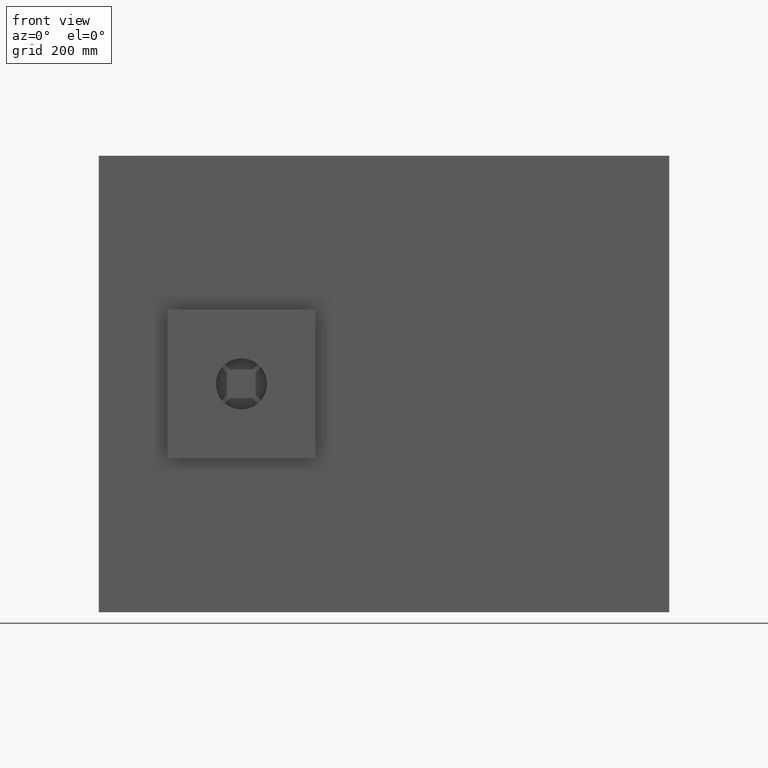
[diagram: clean part render]
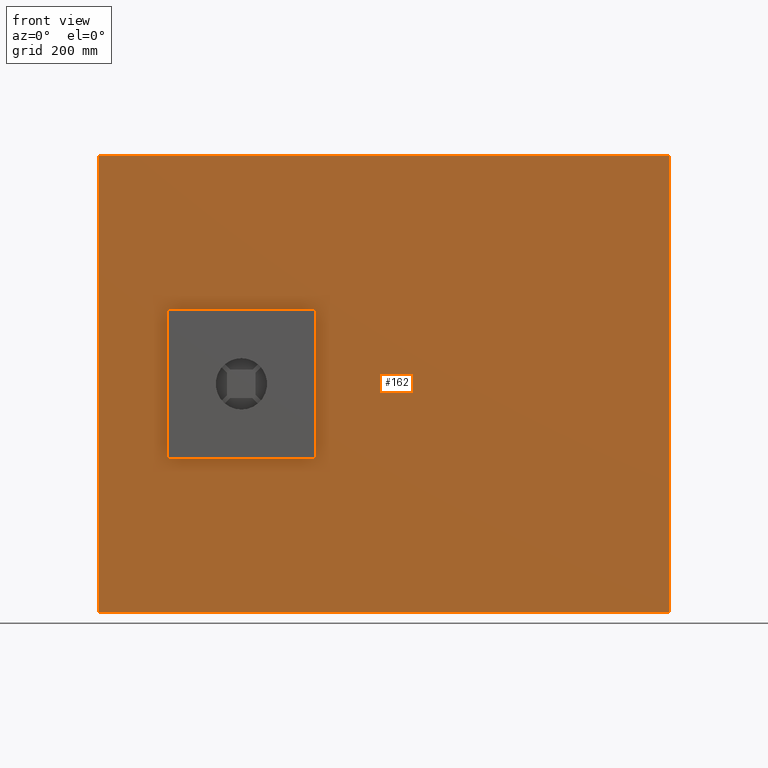
[diagram: same view with one face highlighted and labeled with its STEP entity id]
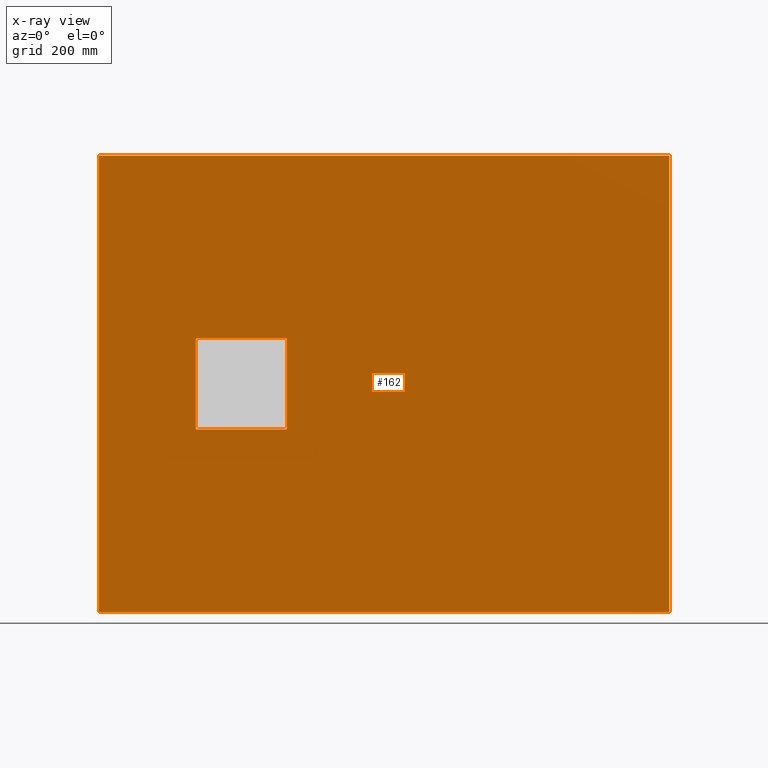
[diagram: x-ray of the same camera — body ghosted, the highlighted face saturated]
A machine part, front view. The second image highlights one B-rep face of the part: STEP entity #162.
The next image is the same camera in x-ray: the body ghosted, the highlighted face saturated — about 0% of this face is hidden behind the body in this view.
In plain terms, the highlighted planar face has unit normal (0, 1, 0).
Its self-contained STEP definition (entity closure, byte-faithful):
#59 = CARTESIAN_POINT ( 'NONE',  ( -170.0000000000001100, 0.0000000000000000000, -77.50000000000018500 ) ) ;
#153 = DIRECTION ( 'NONE',  ( 1.000000000000000000, 0.0000000000000000000, 0.0000000000000000000 ) ) ;
#162 = ADVANCED_FACE ( 'NONE', ( #1513, #1788 ), #604, .F. ) ;
#191 = CARTESIAN_POINT ( 'NONE',  ( -172.5000000000000900, 0.0000000000000000000, 79.99999999999990100 ) ) ;
#230 = VECTOR ( 'NONE', #2792, 1000.000000000000000 ) ;
#236 = LINE ( 'NONE', #2987, #230 ) ;
#245 = ORIENTED_EDGE ( 'NONE', *, *, #2427, .T. ) ;
#253 = VERTEX_POINT ( 'NONE', #2025 ) ;
#279 = CARTESIAN_POINT ( 'NONE',  ( -500.0000000000001100, 0.0000000000000000000, 399.9999999999998900 ) ) ;
#285 = CARTESIAN_POINT ( 'NONE',  ( -172.5000000000000900, 0.0000000000000000000, 77.49999999999994300 ) ) ;
#326 = VERTEX_POINT ( 'NONE', #3090 ) ;
#333 = VERTEX_POINT ( 'NONE', #2588 ) ;
#371 = CARTESIAN_POINT ( 'NONE',  ( -500.0000000000001100, 0.0000000000000000000, 399.9999999999998900 ) ) ;
#441 = CARTESIAN_POINT ( 'NONE',  ( -327.5000000000001700, 0.0000000000000000000, -80.00000000000011400 ) ) ;
#475 = ORIENTED_EDGE ( 'NONE', *, *, #3261, .T. ) ;
#510 = DIRECTION ( 'NONE',  ( -1.790682297782509700E-016, -0.0000000000000000000, -1.000000000000000000 ) ) ;
#512 = ORIENTED_EDGE ( 'NONE', *, *, #3291, .T. ) ;
#513 = DIRECTION ( 'NONE',  ( 0.0000000000000000000, 1.000000000000000000, 0.0000000000000000000 ) ) ;
#537 = VERTEX_POINT ( 'NONE', #2288 ) ;
#545 = ORIENTED_EDGE ( 'NONE', *, *, #1469, .F. ) ;
#590 = VERTEX_POINT ( 'NONE', #2278 ) ;
#595 = ORIENTED_EDGE ( 'NONE', *, *, #3197, .T. ) ;
#604 = PLANE ( 'NONE',  #1599 ) ;
#712 = CARTESIAN_POINT ( 'NONE',  ( -500.0000000000002300, 0.0000000000000000000, -400.0000000000001100 ) ) ;
#735 = VERTEX_POINT ( 'NONE', #191 ) ;
#745 = DIRECTION ( 'NONE',  ( 0.0000000000000000000, 0.0000000000000000000, 1.000000000000000000 ) ) ;
#749 = DIRECTION ( 'NONE',  ( -1.387778780781445700E-016, -0.0000000000000000000, -1.000000000000000000 ) ) ;
#752 = EDGE_CURVE ( 'NONE', #735, #2246, #902, .T. ) ;
#755 = CARTESIAN_POINT ( 'NONE',  ( -327.5000000000001700, 0.0000000000000000000, -77.50000000000011400 ) ) ;
#821 = DIRECTION ( 'NONE',  ( 0.0000000000000000000, 1.000000000000000000, 0.0000000000000000000 ) ) ;
#868 = EDGE_CURVE ( 'NONE', #1247, #590, #2715, .T. ) ;
#873 = DIRECTION ( 'NONE',  ( 0.0000000000000000000, 1.000000000000000000, 0.0000000000000000000 ) ) ;
#902 = CIRCLE ( 'NONE', #1299, 2.499999999999960500 ) ;
#912 = EDGE_CURVE ( 'NONE', #253, #1247, #236, .T. ) ;
#951 = AXIS2_PLACEMENT_3D ( 'NONE', #2915, #873, #2224 ) ;
#1078 = CARTESIAN_POINT ( 'NONE',  ( 499.9999999999997700, 0.0000000000000000000, -400.0000000000001100 ) ) ;
#1094 = CARTESIAN_POINT ( 'NONE',  ( -327.5000000000001100, 0.0000000000000000000, 79.99999999999991500 ) ) ;
#1160 = CARTESIAN_POINT ( 'NONE',  ( -327.5000000000001700, 0.0000000000000000000, -80.00000000000011400 ) ) ;
#1247 = VERTEX_POINT ( 'NONE', #2430 ) ;
#1299 = AXIS2_PLACEMENT_3D ( 'NONE', #285, #513, #745 ) ;
#1341 = VERTEX_POINT ( 'NONE', #279 ) ;
#1376 = EDGE_LOOP ( 'NONE', ( #475, #1454, #595, #512, #2923, #245, #2656, #1962 ) ) ;
#1386 = ORIENTED_EDGE ( 'NONE', *, *, #1535, .F. ) ;
#1394 = EDGE_LOOP ( 'NONE', ( #2973, #545, #1386, #2707 ) ) ;
#1411 = CIRCLE ( 'NONE', #3048, 2.500000000000002200 ) ;
#1454 = ORIENTED_EDGE ( 'NONE', *, *, #752, .T. ) ;
#1469 = EDGE_CURVE ( 'NONE', #333, #537, #2564, .T. ) ;
#1485 = DIRECTION ( 'NONE',  ( -1.000000000000000000, -0.0000000000000000000, -0.0000000000000000000 ) ) ;
#1513 = FACE_BOUND ( 'NONE', #1376, .T. ) ;
#1535 = EDGE_CURVE ( 'NONE', #326, #333, #2633, .T. ) ;
#1599 = AXIS2_PLACEMENT_3D ( 'NONE', #2107, #1768, #1734 ) ;
#1611 = DIRECTION ( 'NONE',  ( 0.0000000000000000000, 0.0000000000000000000, 1.000000000000000000 ) ) ;
#1616 = DIRECTION ( 'NONE',  ( 1.387778780781445700E-016, 0.0000000000000000000, 1.000000000000000000 ) ) ;
#1734 = DIRECTION ( 'NONE',  ( 0.0000000000000000000, -0.0000000000000000000, 1.000000000000000000 ) ) ;
#1768 = DIRECTION ( 'NONE',  ( 0.0000000000000000000, 1.000000000000000000, 0.0000000000000000000 ) ) ;
#1788 = FACE_OUTER_BOUND ( 'NONE', #1394, .T. ) ;
#1811 = LINE ( 'NONE', #712, #1817 ) ;
#1817 = VECTOR ( 'NONE', #1616, 1000.000000000000000 ) ;
#1876 = CARTESIAN_POINT ( 'NONE',  ( -170.0000000000001100, 0.0000000000000000000, 77.49999999999994300 ) ) ;
#1920 = VERTEX_POINT ( 'NONE', #59 ) ;
#1962 = ORIENTED_EDGE ( 'NONE', *, *, #868, .T. ) ;
#1977 = LINE ( 'NONE', #2003, #2817 ) ;
#1991 = EDGE_CURVE ( 'NONE', #537, #1341, #1811, .T. ) ;
#2003 = CARTESIAN_POINT ( 'NONE',  ( -170.0000000000001400, 0.0000000000000000000, -77.50000000000014200 ) ) ;
#2025 = CARTESIAN_POINT ( 'NONE',  ( -330.0000000000001700, 0.0000000000000000000, -77.50000000000011400 ) ) ;
#2033 = AXIS2_PLACEMENT_3D ( 'NONE', #755, #821, #1611 ) ;
#2107 = CARTESIAN_POINT ( 'NONE',  ( -500.0000000000001100, 0.0000000000000000000, 399.9999999999998900 ) ) ;
#2154 = LINE ( 'NONE', #371, #2185 ) ;
#2185 = VECTOR ( 'NONE', #153, 1000.000000000000000 ) ;
#2187 = EDGE_CURVE ( 'NONE', #1341, #326, #2154, .T. ) ;
#2224 = DIRECTION ( 'NONE',  ( 0.0000000000000000000, 0.0000000000000000000, 1.000000000000000000 ) ) ;
#2246 = VERTEX_POINT ( 'NONE', #1876 ) ;
#2257 = VERTEX_POINT ( 'NONE', #3247 ) ;
#2278 = CARTESIAN_POINT ( 'NONE',  ( -327.5000000000001100, 0.0000000000000000000, 79.99999999999991500 ) ) ;
#2288 = CARTESIAN_POINT ( 'NONE',  ( -500.0000000000002300, 0.0000000000000000000, -400.0000000000001100 ) ) ;
#2362 = CIRCLE ( 'NONE', #2033, 2.500000000000002200 ) ;
#2427 = EDGE_CURVE ( 'NONE', #2782, #253, #2362, .T. ) ;
#2430 = CARTESIAN_POINT ( 'NONE',  ( -330.0000000000001700, 0.0000000000000000000, 77.49999999999994300 ) ) ;
#2496 = EDGE_CURVE ( 'NONE', #2257, #2782, #2642, .T. ) ;
#2510 = DIRECTION ( 'NONE',  ( 0.0000000000000000000, 1.000000000000000000, -0.0000000000000000000 ) ) ;
#2525 = CARTESIAN_POINT ( 'NONE',  ( -172.5000000000001400, 0.0000000000000000000, -77.50000000000014200 ) ) ;
#2564 = LINE ( 'NONE', #3256, #2643 ) ;
#2574 = VECTOR ( 'NONE', #749, 1000.000000000000000 ) ;
#2588 = CARTESIAN_POINT ( 'NONE',  ( 499.9999999999997700, 0.0000000000000000000, -400.0000000000001100 ) ) ;
#2593 = VECTOR ( 'NONE', #2803, 1000.000000000000000 ) ;
#2633 = LINE ( 'NONE', #1078, #2574 ) ;
#2642 = LINE ( 'NONE', #441, #2593 ) ;
#2643 = VECTOR ( 'NONE', #1485, 1000.000000000000000 ) ;
#2656 = ORIENTED_EDGE ( 'NONE', *, *, #912, .T. ) ;
#2707 = ORIENTED_EDGE ( 'NONE', *, *, #2187, .F. ) ;
#2715 = CIRCLE ( 'NONE', #951, 2.500000000000044000 ) ;
#2779 = DIRECTION ( 'NONE',  ( 0.0000000000000000000, 0.0000000000000000000, -1.000000000000000000 ) ) ;
#2782 = VERTEX_POINT ( 'NONE', #1160 ) ;
#2792 = DIRECTION ( 'NONE',  ( -3.581364595565019900E-016, 0.0000000000000000000, 1.000000000000000000 ) ) ;
#2803 = DIRECTION ( 'NONE',  ( -1.000000000000000000, -0.0000000000000000000, 1.790682297782510200E-016 ) ) ;
#2817 = VECTOR ( 'NONE', #510, 1000.000000000000000 ) ;
#2915 = CARTESIAN_POINT ( 'NONE',  ( -327.5000000000001100, 0.0000000000000000000, 77.49999999999994300 ) ) ;
#2923 = ORIENTED_EDGE ( 'NONE', *, *, #2496, .T. ) ;
#2956 = LINE ( 'NONE', #1094, #3225 ) ;
#2973 = ORIENTED_EDGE ( 'NONE', *, *, #1991, .F. ) ;
#2987 = CARTESIAN_POINT ( 'NONE',  ( -330.0000000000001700, 0.0000000000000000000, -77.50000000000011400 ) ) ;
#3010 = DIRECTION ( 'NONE',  ( 1.000000000000000000, 0.0000000000000000000, -8.953411488912551000E-017 ) ) ;
#3048 = AXIS2_PLACEMENT_3D ( 'NONE', #2525, #2510, #2779 ) ;
#3090 = CARTESIAN_POINT ( 'NONE',  ( 499.9999999999998900, 0.0000000000000000000, 399.9999999999998900 ) ) ;
#3197 = EDGE_CURVE ( 'NONE', #2246, #1920, #1977, .T. ) ;
#3225 = VECTOR ( 'NONE', #3010, 1000.000000000000000 ) ;
#3247 = CARTESIAN_POINT ( 'NONE',  ( -172.5000000000001400, 0.0000000000000000000, -80.00000000000014200 ) ) ;
#3256 = CARTESIAN_POINT ( 'NONE',  ( -500.0000000000002300, 0.0000000000000000000, -400.0000000000001100 ) ) ;
#3261 = EDGE_CURVE ( 'NONE', #590, #735, #2956, .T. ) ;
#3291 = EDGE_CURVE ( 'NONE', #1920, #2257, #1411, .T. ) ;